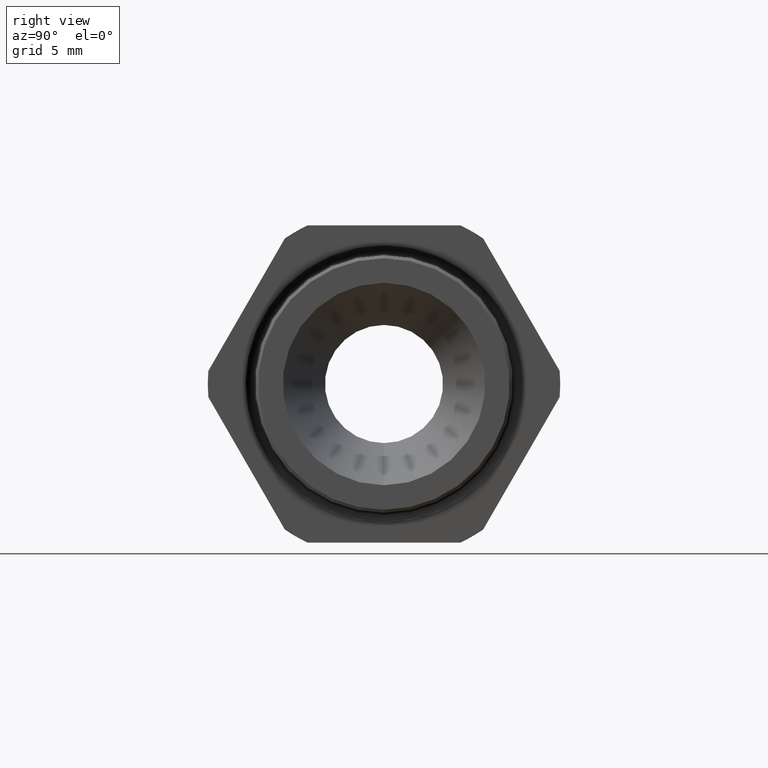
[diagram: clean part render]
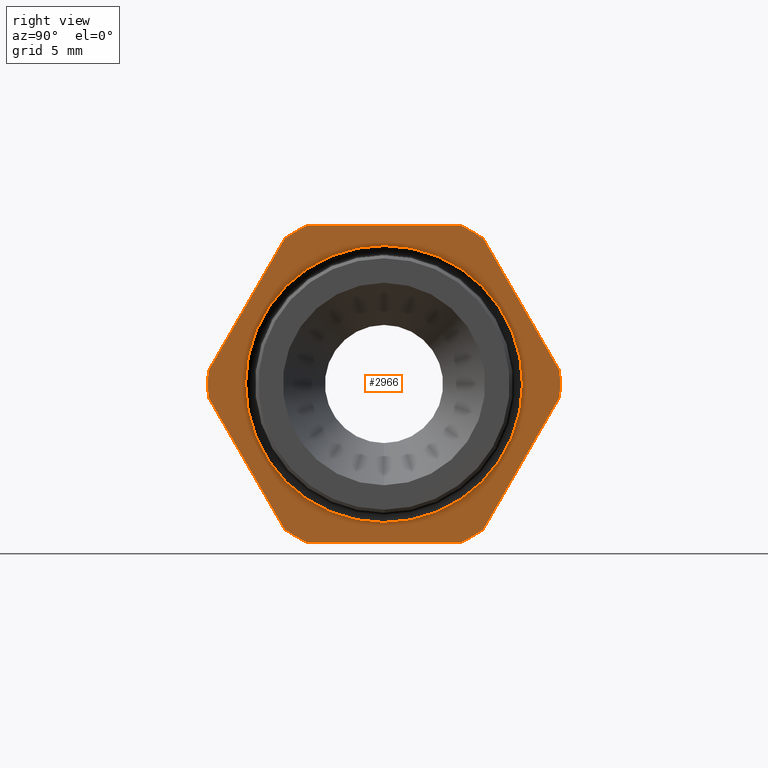
[diagram: same view with one face highlighted and labeled with its STEP entity id]
A machine part, right view. The second image highlights one B-rep face of the part: STEP entity #2966.
In plain terms, the highlighted planar face has unit normal (1, 0, 0).
Its self-contained STEP definition (entity closure, byte-faithful):
#2734 = DIRECTION ( 'NONE',  ( 0.0000000000000000000, 0.0000000000000000000, -1.000000000000000000 ) ) ;
#2735 = DIRECTION ( 'NONE',  ( 1.000000000000000000, 0.0000000000000000000, 0.0000000000000000000 ) ) ;
#2736 = CARTESIAN_POINT ( 'NONE',  ( -0.3100000000000000000, 0.0000000000000000000, 0.0000000000000000000 ) ) ;
#2737 = AXIS2_PLACEMENT_3D ( 'NONE', #2736, #2735, #2734 ) ;
#2738 = CIRCLE ( 'NONE', #2737, 0.5217000000000000500 ) ;
#2740 = DIRECTION ( 'NONE',  ( 0.0000000000000000000, 0.0000000000000000000, -1.000000000000000000 ) ) ;
#2741 = DIRECTION ( 'NONE',  ( 1.000000000000000000, 0.0000000000000000000, 0.0000000000000000000 ) ) ;
#2742 = CARTESIAN_POINT ( 'NONE',  ( -0.3100000000000000000, 0.0000000000000000000, 0.0000000000000000000 ) ) ;
#2743 = AXIS2_PLACEMENT_3D ( 'NONE', #2742, #2741, #2740 ) ;
#2744 = CIRCLE ( 'NONE', #2743, 0.5217000000000000500 ) ;
#2745 = DIRECTION ( 'NONE',  ( 0.0000000000000000000, -1.000000000000000000, 0.0000000000000000000 ) ) ;
#2746 = VECTOR ( 'NONE', #2745, 39.37007874015748100 ) ;
#2747 = CARTESIAN_POINT ( 'NONE',  ( -0.3100000000000000000, 0.9400000000000000600, 0.4699999999999999200 ) ) ;
#2748 = LINE ( 'NONE', #2747, #2746 ) ;
#2749 = CARTESIAN_POINT ( 'NONE',  ( -0.3100000000000000000, -0.2264307620443835600, 0.4699999999999997500 ) ) ;
#2800 = CARTESIAN_POINT ( 'NONE',  ( -0.3100000000000000000, 5.023364771574023900E-017, 0.4101888622149249000 ) ) ;
#2847 = VERTEX_POINT ( 'NONE', #2749 ) ;
#2849 = ORIENTED_EDGE ( 'NONE', *, *, #2850, .T. ) ;
#2850 = EDGE_CURVE ( 'NONE', #2941, #2847, #2748, .T. ) ;
#2853 = EDGE_CURVE ( 'NONE', #2946, #2941, #2744, .T. ) ;
#2857 = EDGE_CURVE ( 'NONE', #2847, #2988, #2738, .T. ) ;
#2858 = ORIENTED_EDGE ( 'NONE', *, *, #2857, .T. ) ;
#2877 = VERTEX_POINT ( 'NONE', #2800 ) ;
#2908 = VERTEX_POINT ( 'NONE', #3295 ) ;
#2916 = EDGE_CURVE ( 'NONE', #2908, #2877, #3286, .T. ) ;
#2941 = VERTEX_POINT ( 'NONE', #3355 ) ;
#2943 = EDGE_CURVE ( 'NONE', #2951, #2946, #3350, .T. ) ;
#2944 = ORIENTED_EDGE ( 'NONE', *, *, #2853, .T. ) ;
#2946 = VERTEX_POINT ( 'NONE', #3346 ) ;
#2950 = ORIENTED_EDGE ( 'NONE', *, *, #2943, .T. ) ;
#2951 = VERTEX_POINT ( 'NONE', #3340 ) ;
#2952 = EDGE_CURVE ( 'NONE', #2957, #2951, #3339, .T. ) ;
#2954 = ORIENTED_EDGE ( 'NONE', *, *, #2952, .T. ) ;
#2955 = VERTEX_POINT ( 'NONE', #3390 ) ;
#2957 = VERTEX_POINT ( 'NONE', #3388 ) ;
#2960 = ORIENTED_EDGE ( 'NONE', *, *, #2962, .T. ) ;
#2962 = EDGE_CURVE ( 'NONE', #2955, #2957, #3386, .T. ) ;
#2964 = EDGE_LOOP ( 'NONE', ( #2960, #2954, #2950, #2944, #2849, #2858, #2984, #2975, #3067, #3069, #3058, #3023 ) ) ;
#2966 = ADVANCED_FACE ( 'NONE', ( #3373, #3376 ), #3372, .T. ) ;
#2969 = EDGE_CURVE ( 'NONE', #2986, #2974, #3416, .T. ) ;
#2974 = VERTEX_POINT ( 'NONE', #3405 ) ;
#2975 = ORIENTED_EDGE ( 'NONE', *, *, #2969, .T. ) ;
#2983 = EDGE_CURVE ( 'NONE', #2988, #2986, #3451, .T. ) ;
#2984 = ORIENTED_EDGE ( 'NONE', *, *, #2983, .T. ) ;
#2986 = VERTEX_POINT ( 'NONE', #3447 ) ;
#2988 = VERTEX_POINT ( 'NONE', #3446 ) ;
#3023 = ORIENTED_EDGE ( 'NONE', *, *, #3051, .T. ) ;
#3046 = EDGE_LOOP ( 'NONE', ( #3052, #3050 ) ) ;
#3050 = ORIENTED_EDGE ( 'NONE', *, *, #3244, .T. ) ;
#3051 = EDGE_CURVE ( 'NONE', #3053, #2955, #3530, .T. ) ;
#3052 = ORIENTED_EDGE ( 'NONE', *, *, #2916, .T. ) ;
#3053 = VERTEX_POINT ( 'NONE', #3525 ) ;
#3055 = EDGE_CURVE ( 'NONE', #3059, #3053, #3579, .T. ) ;
#3058 = ORIENTED_EDGE ( 'NONE', *, *, #3055, .T. ) ;
#3059 = VERTEX_POINT ( 'NONE', #3571 ) ;
#3061 = EDGE_CURVE ( 'NONE', #3068, #3059, #3570, .T. ) ;
#3064 = EDGE_CURVE ( 'NONE', #2974, #3068, #3561, .T. ) ;
#3067 = ORIENTED_EDGE ( 'NONE', *, *, #3064, .T. ) ;
#3068 = VERTEX_POINT ( 'NONE', #3557 ) ;
#3069 = ORIENTED_EDGE ( 'NONE', *, *, #3061, .T. ) ;
#3244 = EDGE_CURVE ( 'NONE', #2877, #2908, #3935, .T. ) ;
#3282 = DIRECTION ( 'NONE',  ( 0.0000000000000000000, 0.0000000000000000000, -1.000000000000000000 ) ) ;
#3283 = DIRECTION ( 'NONE',  ( -1.000000000000000000, 0.0000000000000000000, 0.0000000000000000000 ) ) ;
#3284 = CARTESIAN_POINT ( 'NONE',  ( -0.3100000000000000000, 0.0000000000000000000, 0.0000000000000000000 ) ) ;
#3285 = AXIS2_PLACEMENT_3D ( 'NONE', #3284, #3283, #3282 ) ;
#3286 = CIRCLE ( 'NONE', #3285, 0.4101888622149249000 ) ;
#3295 = CARTESIAN_POINT ( 'NONE',  ( -0.3100000000000000000, 0.0000000000000000000, -0.4101888622149249000 ) ) ;
#3335 = DIRECTION ( 'NONE',  ( 0.0000000000000000000, 0.0000000000000000000, -1.000000000000000000 ) ) ;
#3336 = DIRECTION ( 'NONE',  ( 1.000000000000000000, 0.0000000000000000000, 0.0000000000000000000 ) ) ;
#3337 = CARTESIAN_POINT ( 'NONE',  ( -0.3100000000000000000, 0.0000000000000000000, 0.0000000000000000000 ) ) ;
#3338 = AXIS2_PLACEMENT_3D ( 'NONE', #3337, #3336, #3335 ) ;
#3339 = CIRCLE ( 'NONE', #3338, 0.5217000000000000500 ) ;
#3340 = CARTESIAN_POINT ( 'NONE',  ( -0.3100000000000000000, 0.5202473208008776600, 0.03890520787129532500 ) ) ;
#3346 = CARTESIAN_POINT ( 'NONE',  ( -0.3100000000000000000, 0.2938165587564949300, 0.4310947921287048300 ) ) ;
#3347 = DIRECTION ( 'NONE',  ( 0.0000000000000000000, -0.4999999999999998300, 0.8660254037844386000 ) ) ;
#3348 = VECTOR ( 'NONE', #3347, 39.37007874015748900 ) ;
#3349 = CARTESIAN_POINT ( 'NONE',  ( -0.3100000000000000000, 0.6420319397786863300, -0.1720319397786860500 ) ) ;
#3350 = LINE ( 'NONE', #3349, #3348 ) ;
#3355 = CARTESIAN_POINT ( 'NONE',  ( -0.3100000000000000000, 0.2264307620443832800, 0.4699999999999999200 ) ) ;
#3372 = PLANE ( 'NONE',  #3375 ) ;
#3373 = FACE_OUTER_BOUND ( 'NONE', #2964, .T. ) ;
#3375 = AXIS2_PLACEMENT_3D ( 'NONE', #3423, #3422, #3421 ) ;
#3376 = FACE_BOUND ( 'NONE', #3046, .T. ) ;
#3377 = DIRECTION ( 'NONE',  ( 0.0000000000000000000, 0.4999999999999998300, 0.8660254037844388200 ) ) ;
#3378 = VECTOR ( 'NONE', #3377, 39.37007874015748100 ) ;
#3385 = CARTESIAN_POINT ( 'NONE',  ( -0.3100000000000000000, 0.6420319397786862200, 0.1720319397786861100 ) ) ;
#3386 = LINE ( 'NONE', #3385, #3378 ) ;
#3388 = CARTESIAN_POINT ( 'NONE',  ( -0.3100000000000000000, 0.5202473208008777700, -0.03890520787129511700 ) ) ;
#3390 = CARTESIAN_POINT ( 'NONE',  ( -0.3100000000000000000, 0.2938165587564948700, -0.4310947921287048800 ) ) ;
#3405 = CARTESIAN_POINT ( 'NONE',  ( -0.3100000000000000000, -0.5202473208008777700, -0.03890520787129508900 ) ) ;
#3412 = DIRECTION ( 'NONE',  ( 0.0000000000000000000, 0.0000000000000000000, -1.000000000000000000 ) ) ;
#3413 = DIRECTION ( 'NONE',  ( 1.000000000000000000, 0.0000000000000000000, 0.0000000000000000000 ) ) ;
#3414 = CARTESIAN_POINT ( 'NONE',  ( -0.3100000000000000000, 0.0000000000000000000, 0.0000000000000000000 ) ) ;
#3415 = AXIS2_PLACEMENT_3D ( 'NONE', #3414, #3413, #3412 ) ;
#3416 = CIRCLE ( 'NONE', #3415, 0.5217000000000000500 ) ;
#3421 = DIRECTION ( 'NONE',  ( 0.0000000000000000000, 0.0000000000000000000, -1.000000000000000000 ) ) ;
#3422 = DIRECTION ( 'NONE',  ( 1.000000000000000000, 0.0000000000000000000, 0.0000000000000000000 ) ) ;
#3423 = CARTESIAN_POINT ( 'NONE',  ( -0.3100000000000000000, 0.9400000000000000600, 0.0000000000000000000 ) ) ;
#3446 = CARTESIAN_POINT ( 'NONE',  ( -0.3100000000000000000, -0.2938165587564948700, 0.4310947921287048800 ) ) ;
#3447 = CARTESIAN_POINT ( 'NONE',  ( -0.3100000000000000000, -0.5202473208008777700, 0.03890520787129464500 ) ) ;
#3448 = DIRECTION ( 'NONE',  ( 0.0000000000000000000, -0.4999999999999996100, -0.8660254037844388200 ) ) ;
#3449 = VECTOR ( 'NONE', #3448, 39.37007874015748900 ) ;
#3450 = CARTESIAN_POINT ( 'NONE',  ( -0.3100000000000000000, -0.1720319397786865500, 0.6420319397786857800 ) ) ;
#3451 = LINE ( 'NONE', #3450, #3449 ) ;
#3525 = CARTESIAN_POINT ( 'NONE',  ( -0.3100000000000000000, 0.2264307620443831200, -0.4700000000000000300 ) ) ;
#3526 = DIRECTION ( 'NONE',  ( 0.0000000000000000000, 0.0000000000000000000, -1.000000000000000000 ) ) ;
#3527 = DIRECTION ( 'NONE',  ( 1.000000000000000000, 0.0000000000000000000, 0.0000000000000000000 ) ) ;
#3528 = CARTESIAN_POINT ( 'NONE',  ( -0.3100000000000000000, 0.0000000000000000000, 0.0000000000000000000 ) ) ;
#3529 = AXIS2_PLACEMENT_3D ( 'NONE', #3528, #3527, #3526 ) ;
#3530 = CIRCLE ( 'NONE', #3529, 0.5217000000000000500 ) ;
#3557 = CARTESIAN_POINT ( 'NONE',  ( -0.3100000000000000000, -0.2938165587564944800, -0.4310947921287051100 ) ) ;
#3558 = DIRECTION ( 'NONE',  ( 0.0000000000000000000, 0.5000000000000000000, -0.8660254037844386000 ) ) ;
#3559 = VECTOR ( 'NONE', #3558, 39.37007874015748900 ) ;
#3560 = CARTESIAN_POINT ( 'NONE',  ( -0.3100000000000000000, -0.1720319397786861700, -0.6420319397786863300 ) ) ;
#3561 = LINE ( 'NONE', #3560, #3559 ) ;
#3566 = DIRECTION ( 'NONE',  ( 0.0000000000000000000, 0.0000000000000000000, -1.000000000000000000 ) ) ;
#3567 = DIRECTION ( 'NONE',  ( 1.000000000000000000, 0.0000000000000000000, 0.0000000000000000000 ) ) ;
#3568 = CARTESIAN_POINT ( 'NONE',  ( -0.3100000000000000000, 0.0000000000000000000, 0.0000000000000000000 ) ) ;
#3569 = AXIS2_PLACEMENT_3D ( 'NONE', #3568, #3567, #3566 ) ;
#3570 = CIRCLE ( 'NONE', #3569, 0.5217000000000000500 ) ;
#3571 = CARTESIAN_POINT ( 'NONE',  ( -0.3100000000000000000, -0.2264307620443831200, -0.4700000000000000300 ) ) ;
#3576 = DIRECTION ( 'NONE',  ( 0.0000000000000000000, 1.000000000000000000, 0.0000000000000000000 ) ) ;
#3577 = VECTOR ( 'NONE', #3576, 39.37007874015748100 ) ;
#3578 = CARTESIAN_POINT ( 'NONE',  ( -0.3100000000000000000, 0.9400000000000000600, -0.4700000000000000300 ) ) ;
#3579 = LINE ( 'NONE', #3578, #3577 ) ;
#3926 = DIRECTION ( 'NONE',  ( 0.0000000000000000000, 0.0000000000000000000, -1.000000000000000000 ) ) ;
#3927 = DIRECTION ( 'NONE',  ( -1.000000000000000000, 0.0000000000000000000, 0.0000000000000000000 ) ) ;
#3928 = AXIS2_PLACEMENT_3D ( 'NONE', #3936, #3927, #3926 ) ;
#3935 = CIRCLE ( 'NONE', #3928, 0.4101888622149249000 ) ;
#3936 = CARTESIAN_POINT ( 'NONE',  ( -0.3100000000000000000, 0.0000000000000000000, 0.0000000000000000000 ) ) ;